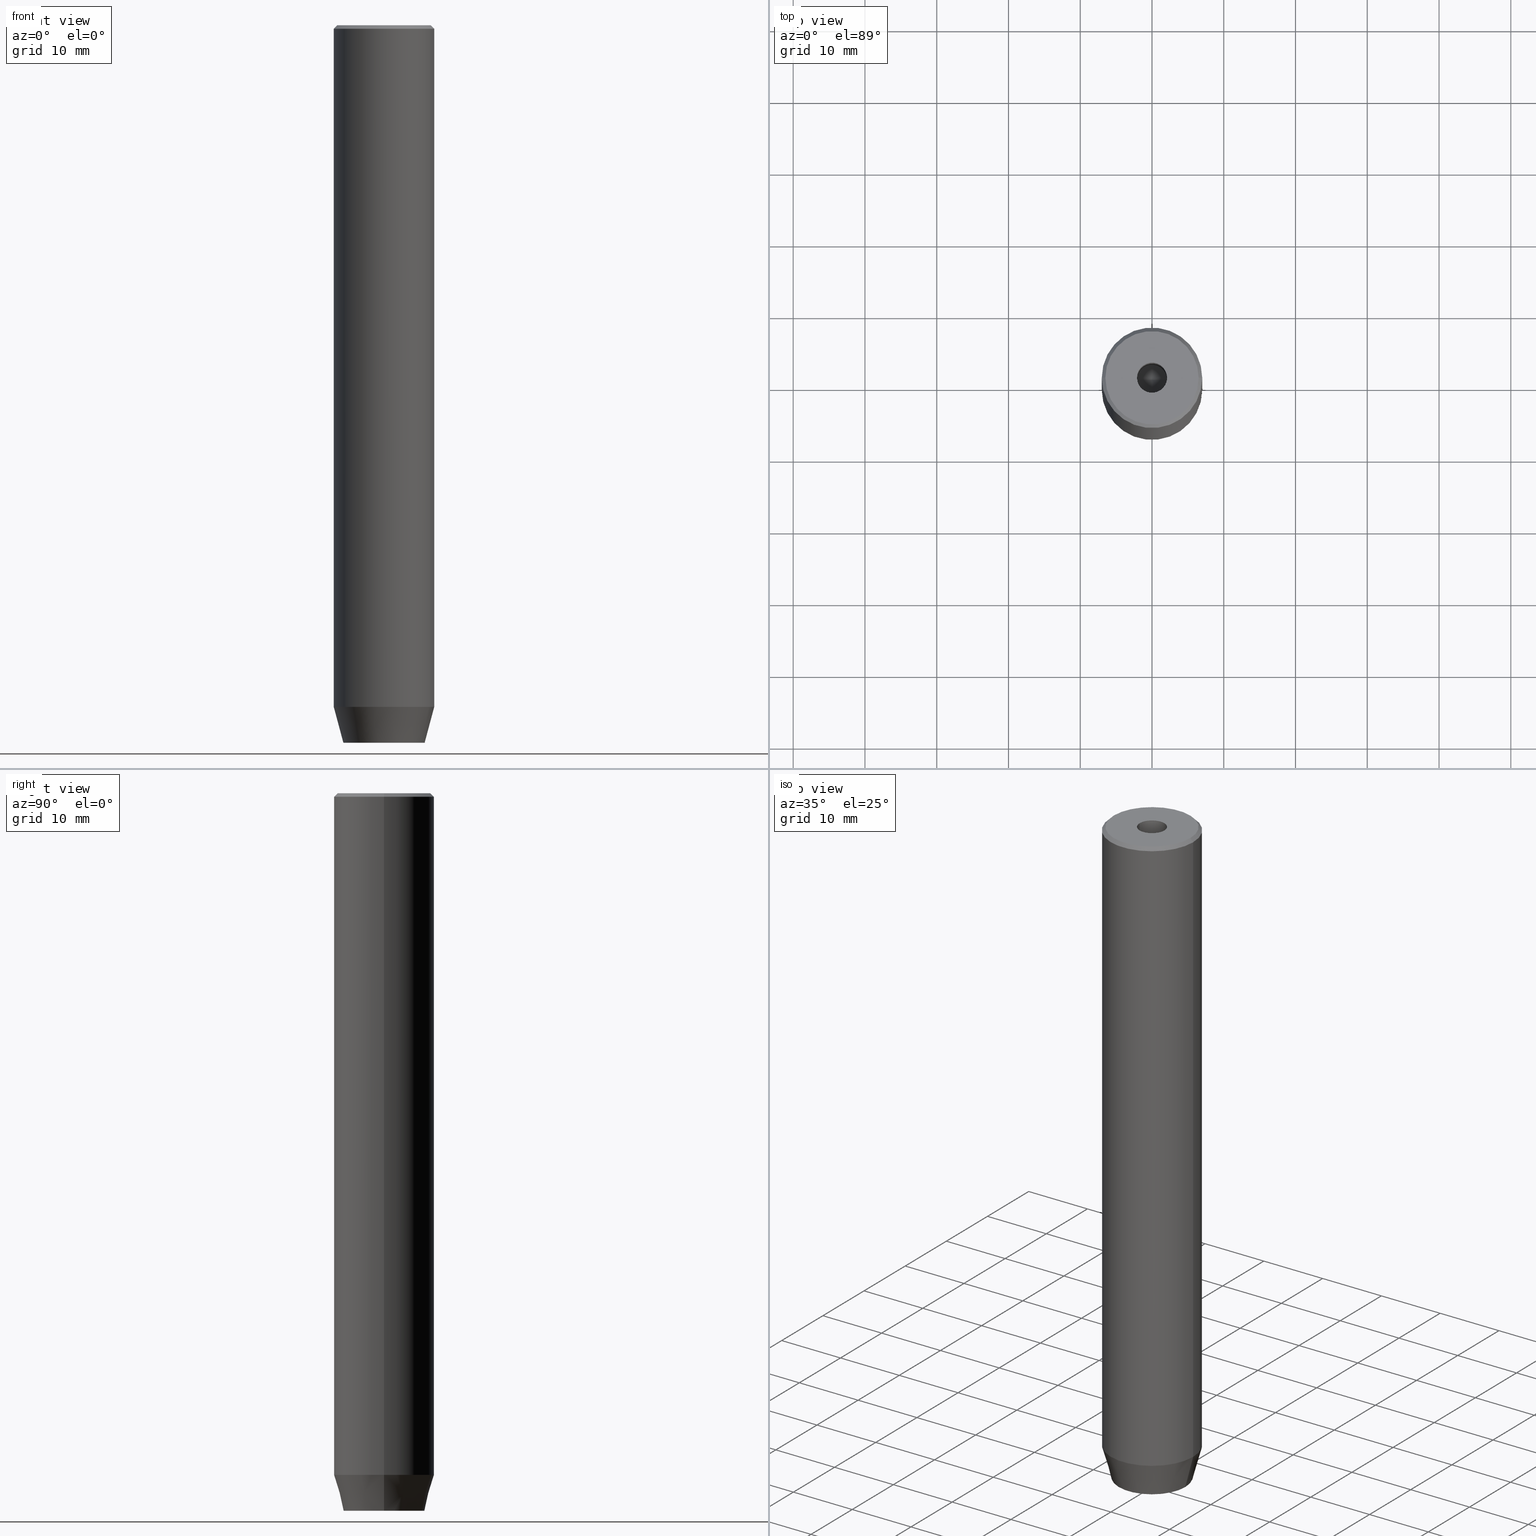
[diagram: canonical four-view strip — front | top / right | iso, engineering-drawing reading convention]
A machine part, canonical four-view strip (front | top / right | iso — engineering-drawing reading convention). The complete STEP part file that produces these views, byte-faithful:
ISO-10303-21;
HEADER;
FILE_DESCRIPTION (( 'STEP AP203' ),
    '1' );
FILE_NAME ('acf7.STEP',
    '2024-01-02T21:53:06',
    ( '' ),
    ( '' ),
    'SwSTEP 2.0',
    'SolidWorks 2019',
    '' );
FILE_SCHEMA (( 'CONFIG_CONTROL_DESIGN' ));
ENDSEC;

DATA;
#1 = CARTESIAN_POINT ( 'NONE',  ( 0.000000000000000000, 0.000000000000000000, 0.000000000000000000 ) ) ;
#2 = EDGE_LOOP ( 'NONE', ( #190, #556, #543, #167 ) ) ;
#3 = CARTESIAN_POINT ( 'NONE',  ( 0.000000000000000000, 0.000000000000000000, -97.20000000000000284 ) ) ;
#4 = ORIENTED_EDGE ( 'NONE', *, *, #584, .F. ) ;
#5 = DIRECTION ( 'NONE',  ( 1.000000000000000000, 0.000000000000000000, 0.000000000000000000 ) ) ;
#6 = ADVANCED_FACE ( 'NONE', ( #398 ), #256, .F. ) ;
#7 = DIRECTION ( 'NONE',  ( 0.8660254037844387076, -0.4999999999999998890, 0.000000000000000000 ) ) ;
#8 = EDGE_LOOP ( 'NONE', ( #50, #354, #414, #4 ) ) ;
#9 = VECTOR ( 'NONE', #147, 1000.000000000000000 ) ;
#10 = ORGANIZATION ( 'NEUR�EN�', 'NEUR�EN�', '' ) ;
#11 = DIRECTION ( 'NONE',  ( 1.000000000000000000, 0.000000000000000000, 0.000000000000000000 ) ) ;
#12 = PERSON_AND_ORGANIZATION ( #495, #10 ) ;
#13 = ORIENTED_EDGE ( 'NONE', *, *, #197, .T. ) ;
#14 = CARTESIAN_POINT ( 'NONE',  ( 0.000000000000000000, 0.000000000000000000, 0.000000000000000000 ) ) ;
#15 = ORIENTED_EDGE ( 'NONE', *, *, #308, .T. ) ;
#16 = EDGE_CURVE ( 'NONE', #184, #33, #24, .T. ) ;
#17 = DIRECTION ( 'NONE',  ( -0.000000000000000000, -0.000000000000000000, 1.000000000000000000 ) ) ;
#18 = VERTEX_POINT ( 'NONE', #341 ) ;
#19 = VECTOR ( 'NONE', #47, 999.9999999999998863 ) ;
#20 = CARTESIAN_POINT ( 'NONE',  ( -1.250000000000000444, 2.165063509461097269, -100.0000000000000000 ) ) ;
#21 = AXIS2_PLACEMENT_3D ( 'NONE', #522, #353, #161 ) ;
#22 = AXIS2_PLACEMENT_3D ( 'NONE', #245, #413, #585 ) ;
#23 = DIRECTION ( 'NONE',  ( -0.8660254037844387076, 0.4999999999999998890, 0.000000000000000000 ) ) ;
#24 = LINE ( 'NONE', #173, #329 ) ;
#25 = DIRECTION ( 'NONE',  ( -0.000000000000000000, -0.000000000000000000, 1.000000000000000000 ) ) ;
#26 = EDGE_CURVE ( 'NONE', #18, #559, #298, .T. ) ;
#27 = ORIENTED_EDGE ( 'NONE', *, *, #186, .T. ) ;
#28 = CARTESIAN_POINT ( 'NONE',  ( -2.500000000000000444, 1.443375672974064772, -97.20000000000000284 ) ) ;
#29 = EDGE_LOOP ( 'NONE', ( #456, #504, #288, #104, #57, #437 ) ) ;
#30 = APPROVAL ( #469, 'NEUR�EN�' ) ;
#31 = DIRECTION ( 'NONE',  ( -0.000000000000000000, -0.000000000000000000, 1.000000000000000000 ) ) ;
#32 = CARTESIAN_POINT ( 'NONE',  ( 2.099999999999998757, 0.000000000000000000, -1.990051048614449116E-16 ) ) ;
#33 = VERTEX_POINT ( 'NONE', #391 ) ;
#34 = CONICAL_SURFACE ( 'NONE', #225, 2.099999999999996980, 1.029744258676652535 ) ;
#35 = APPROVAL_PERSON_ORGANIZATION ( #12, #78, #259 ) ;
#36 = DIRECTION ( 'NONE',  ( -0.000000000000000000, -0.000000000000000000, 1.000000000000000000 ) ) ;
#37 = CARTESIAN_POINT ( 'NONE',  ( 6.499999999999992006, 7.960204194457785616E-16, 0.000000000000000000 ) ) ;
#38 = CARTESIAN_POINT ( 'NONE',  ( -1.084202172485504434E-16, 2.886751345948129543, -97.20000000000000284 ) ) ;
#39 = APPROVAL_ROLE ( '' ) ;
#40 = VECTOR ( 'NONE', #42, 1000.000000000000114 ) ;
#41 = CC_DESIGN_APPROVAL ( #30, ( #317 ) ) ;
#42 = DIRECTION ( 'NONE',  ( -0.8660254037844387076, 0.4999999999999998890, 0.000000000000000000 ) ) ;
#43 = CARTESIAN_POINT ( 'NONE',  ( 0.000000000000000000, 2.886751345948129099, -100.0000000000000000 ) ) ;
#44 = PRODUCT_DEFINITION_SHAPE ( 'NONE', 'NONE',  #372 ) ;
#45 = ORIENTED_EDGE ( 'NONE', *, *, #223, .F. ) ;
#46 = COORDINATED_UNIVERSAL_TIME_OFFSET ( 1, 0, .AHEAD. ) ;
#47 = DIRECTION ( 'NONE',  ( -0.8660254037844387076, -0.5000000000000001110, 0.000000000000000000 ) ) ;
#48 = AXIS2_PLACEMENT_3D ( 'NONE', #438, #442, #301 ) ;
#49 = LOCAL_TIME ( 22, 53, 6.000000000000000000, #477 ) ;
#50 = ORIENTED_EDGE ( 'NONE', *, *, #363, .T. ) ;
#51 = EDGE_CURVE ( 'NONE', #240, #518, #566, .T. ) ;
#52 = CARTESIAN_POINT ( 'NONE',  ( 2.500000000000000000, -1.443375672974064106, -97.20000000000000284 ) ) ;
#53 = ORIENTED_EDGE ( 'NONE', *, *, #577, .F. ) ;
#54 = DIRECTION ( 'NONE',  ( -0.000000000000000000, -0.000000000000000000, 1.000000000000000000 ) ) ;
#55 = COORDINATED_UNIVERSAL_TIME_OFFSET ( 1, 0, .AHEAD. ) ;
#56 = DIRECTION ( 'NONE',  ( -0.4999999999999998890, -0.8660254037844387076, 0.000000000000000000 ) ) ;
#57 = ORIENTED_EDGE ( 'NONE', *, *, #574, .T. ) ;
#58 = CARTESIAN_POINT ( 'NONE',  ( 0.000000000000000000, 0.000000000000000000, -15.00000000000000000 ) ) ;
#59 = DIRECTION ( 'NONE',  ( -0.000000000000000000, -0.000000000000000000, 1.000000000000000000 ) ) ;
#60 = EDGE_LOOP ( 'NONE', ( #320, #106, #439, #521 ) ) ;
#61 = AXIS2_PLACEMENT_3D ( 'NONE', #526, #476, #342 ) ;
#62 = PLANE ( 'NONE',  #457 ) ;
#63 = ADVANCED_FACE ( 'NONE', ( #401 ), #412, .T. ) ;
#64 = ORIENTED_EDGE ( 'NONE', *, *, #450, .F. ) ;
#65 = CARTESIAN_POINT ( 'NONE',  ( 0.000000000000000000, 0.000000000000000000, -95.00000000000000000 ) ) ;
#66 = DIRECTION ( 'NONE',  ( 0.8660254037844385966, -0.5000000000000001110, 0.000000000000000000 ) ) ;
#67 = LINE ( 'NONE', #564, #405 ) ;
#68 = APPLICATION_PROTOCOL_DEFINITION ( 'international standard', 'config_control_design', 1994, #331 ) ;
#69 = VERTEX_POINT ( 'NONE', #175 ) ;
#70 = CIRCLE ( 'NONE', #417, 7.000000000000000000 ) ;
#71 = PLANE ( 'NONE',  #254 ) ;
#72 = AXIS2_PLACEMENT_3D ( 'NONE', #396, #570, #172 ) ;
#73 = CALENDAR_DATE ( 2024, 2, 1 ) ;
#74 = EDGE_CURVE ( 'NONE', #201, #184, #313, .T. ) ;
#75 = APPROVAL_DATE_TIME ( #304, #78 ) ;
#76 = ORIENTED_EDGE ( 'NONE', *, *, #473, .T. ) ;
#77 = CARTESIAN_POINT ( 'NONE',  ( 2.500000000000000000, 1.443375672974064328, -97.20000000000000284 ) ) ;
#78 = APPROVAL ( #255, 'NEUR�EN�' ) ;
#79 = DIRECTION ( 'NONE',  ( 0.2588190451025211836, 0.000000000000000000, 0.9659258262890680902 ) ) ;
#80 = VERTEX_POINT ( 'NONE', #127 ) ;
#81 = CARTESIAN_POINT ( 'NONE',  ( -2.500000000000000444, -1.443375672974064328, -97.20000000000000284 ) ) ;
#82 = APPROVAL_DATE_TIME ( #486, #30 ) ;
#83 = DIRECTION ( 'NONE',  ( 1.000000000000000000, 0.000000000000000000, 0.000000000000000000 ) ) ;
#84 = DIRECTION ( 'NONE',  ( -0.000000000000000000, -0.000000000000000000, 1.000000000000000000 ) ) ;
#85 = EDGE_CURVE ( 'NONE', #559, #571, #444, .T. ) ;
#86 = LINE ( 'NONE', #38, #443 ) ;
#87 = LINE ( 'NONE', #271, #580 ) ;
#88 = CYLINDRICAL_SURFACE ( 'NONE', #178, 7.000000000000000000 ) ;
#89 = AXIS2_PLACEMENT_3D ( 'NONE', #65, #17, #519 ) ;
#90 = LOCAL_TIME ( 22, 53, 6.000000000000000000, #46 ) ;
#91 = LINE ( 'NONE', #411, #283 ) ;
#92 = ADVANCED_FACE ( 'NONE', ( #426 ), #238, .T. ) ;
#93 = FACE_OUTER_BOUND ( 'NONE', #327, .T. ) ;
#94 = DIRECTION ( 'NONE',  ( -0.8660254037844387076, -0.5000000000000001110, 0.000000000000000000 ) ) ;
#95 = EDGE_CURVE ( 'NONE', #518, #155, #70, .T. ) ;
#96 = DIRECTION ( 'NONE',  ( -0.2588190451025211836, 3.169619151431770488E-17, 0.9659258262890680902 ) ) ;
#97 = ORIENTED_EDGE ( 'NONE', *, *, #26, .T. ) ;
#98 = DIRECTION ( 'NONE',  ( 1.000000000000000000, 0.000000000000000000, 0.000000000000000000 ) ) ;
#99 = CONICAL_SURFACE ( 'NONE', #138, 6.499999999999992006, 0.7853981633974517207 ) ;
#100 = CC_DESIGN_PERSON_AND_ORGANIZATION_ASSIGNMENT ( #136, #237, ( #317 ) ) ;
#101 = ORIENTED_EDGE ( 'NONE', *, *, #455, .T. ) ;
#102 = FACE_OUTER_BOUND ( 'NONE', #29, .T. ) ;
#103 = DESIGN_CONTEXT ( 'detailed design', #361, 'design' ) ;
#104 = ORIENTED_EDGE ( 'NONE', *, *, #181, .T. ) ;
#105 = PLANE ( 'NONE',  #489 ) ;
#106 = ORIENTED_EDGE ( 'NONE', *, *, #464, .F. ) ;
#107 = DIRECTION ( 'NONE',  ( 0.8660254037844385966, 0.4999999999999999445, 0.000000000000000000 ) ) ;
#108 = DATE_AND_TIME ( #350, #479 ) ;
#109 = ORIENTED_EDGE ( 'NONE', *, *, #527, .F. ) ;
#110 = CIRCLE ( 'NONE', #61, 5.660254037844382857 ) ;
#111 = AXIS2_PLACEMENT_3D ( 'NONE', #187, #145, #326 ) ;
#112 = CARTESIAN_POINT ( 'NONE',  ( -2.500000000000000444, 0.000000000000000000, -97.20000000000000284 ) ) ;
#113 = CARTESIAN_POINT ( 'NONE',  ( 7.000000000000000000, 0.000000000000000000, -95.00000000000000000 ) ) ;
#114 = CARTESIAN_POINT ( 'NONE',  ( 0.000000000000000000, 0.000000000000000000, 0.000000000000000000 ) ) ;
#115 = CARTESIAN_POINT ( 'NONE',  ( 2.099999999999997868, 0.000000000000000000, 0.000000000000000000 ) ) ;
#116 = CARTESIAN_POINT ( 'NONE',  ( 0.000000000000000000, 0.000000000000000000, 0.000000000000000000 ) ) ;
#117 = ORIENTED_EDGE ( 'NONE', *, *, #347, .T. ) ;
#118 = LINE ( 'NONE', #20, #364 ) ;
#119 = ORIENTED_EDGE ( 'NONE', *, *, #325, .T. ) ;
#120 = EDGE_CURVE ( 'NONE', #510, #420, #143, .T. ) ;
#121 = FACE_OUTER_BOUND ( 'NONE', #484, .T. ) ;
#122 = CIRCLE ( 'NONE', #448, 5.660254037844382857 ) ;
#123 = CARTESIAN_POINT ( 'NONE',  ( -6.499999999999992006, 0.000000000000000000, 0.000000000000000000 ) ) ;
#124 = ORIENTED_EDGE ( 'NONE', *, *, #492, .F. ) ;
#125 = CARTESIAN_POINT ( 'NONE',  ( 0.000000000000000000, 0.000000000000000000, -1.990051048614449116E-16 ) ) ;
#126 = ORIENTED_EDGE ( 'NONE', *, *, #51, .T. ) ;
#127 = CARTESIAN_POINT ( 'NONE',  ( 7.000000000000000000, 0.000000000000000000, -95.00000000000000000 ) ) ;
#128 = DIRECTION ( 'NONE',  ( 0.5000000000000001110, 0.8660254037844385966, -0.000000000000000000 ) ) ;
#129 = ADVANCED_FACE ( 'NONE', ( #286 ), #62, .F. ) ;
#130 = DIRECTION ( 'NONE',  ( -0.000000000000000000, -0.000000000000000000, 1.000000000000000000 ) ) ;
#131 = AXIS2_PLACEMENT_3D ( 'NONE', #112, #387, #433 ) ;
#132 = CARTESIAN_POINT ( 'NONE',  ( -2.099999999999996980, 2.571758278209438013E-16, -15.00000000000000000 ) ) ;
#133 = PLANE ( 'NONE',  #303 ) ;
#134 = EDGE_CURVE ( 'NONE', #465, #194, #554, .T. ) ;
#135 = CARTESIAN_POINT ( 'NONE',  ( 1.250000000000000222, 2.165063509461096825, -100.0000000000000000 ) ) ;
#136 = PERSON_AND_ORGANIZATION ( #495, #10 ) ;
#137 = EDGE_CURVE ( 'NONE', #420, #465, #294, .T. ) ;
#138 = AXIS2_PLACEMENT_3D ( 'NONE', #392, #344, #253 ) ;
#139 = CONICAL_SURFACE ( 'NONE', #111, 7.000000000000000000, 0.2617993877991499074 ) ;
#140 = PRODUCT ( 'acf7', 'acf7', '', ( #345 ) ) ;
#141 = ADVANCED_FACE ( 'NONE', ( #156 ), #105, .F. ) ;
#142 = VERTEX_POINT ( 'NONE', #293 ) ;
#143 = LINE ( 'NONE', #191, #158 ) ;
#144 = CC_DESIGN_PERSON_AND_ORGANIZATION_ASSIGNMENT ( #318, #302, ( #538 ) ) ;
#145 = DIRECTION ( 'NONE',  ( -0.000000000000000000, -0.000000000000000000, 1.000000000000000000 ) ) ;
#146 = ORIENTED_EDGE ( 'NONE', *, *, #16, .F. ) ;
#147 = DIRECTION ( 'NONE',  ( -0.000000000000000000, -0.000000000000000000, -1.000000000000000000 ) ) ;
#148 = CIRCLE ( 'NONE', #192, 6.499999999999992006 ) ;
#149 = DIRECTION ( 'NONE',  ( 1.000000000000000000, 0.000000000000000000, 0.000000000000000000 ) ) ;
#150 = EDGE_LOOP ( 'NONE', ( #475, #109 ) ) ;
#151 = DIRECTION ( 'NONE',  ( -0.000000000000000000, -0.000000000000000000, 1.000000000000000000 ) ) ;
#152 = ORIENTED_EDGE ( 'NONE', *, *, #203, .F. ) ;
#153 = EDGE_CURVE ( 'NONE', #310, #201, #337, .T. ) ;
#154 = CARTESIAN_POINT ( 'NONE',  ( -2.099999999999997868, 2.571758278209438999E-16, 0.000000000000000000 ) ) ;
#155 = VERTEX_POINT ( 'NONE', #185 ) ;
#156 = FACE_OUTER_BOUND ( 'NONE', #60, .T. ) ;
#157 = AXIS2_PLACEMENT_3D ( 'NONE', #114, #31, #216 ) ;
#158 = VECTOR ( 'NONE', #379, 1000.000000000000000 ) ;
#159 = ORIENTED_EDGE ( 'NONE', *, *, #347, .F. ) ;
#160 = AXIS2_PLACEMENT_3D ( 'NONE', #435, #482, #250 ) ;
#161 = DIRECTION ( 'NONE',  ( 1.000000000000000000, 0.000000000000000000, 0.000000000000000000 ) ) ;
#162 = ADVANCED_FACE ( 'NONE', ( #463 ), #34, .F. ) ;
#163 = CARTESIAN_POINT ( 'NONE',  ( -1.249999999999999556, -2.165063509461096825, -97.20000000000000284 ) ) ;
#164 = EDGE_LOOP ( 'NONE', ( #423, #126, #429, #206 ) ) ;
#165 = LINE ( 'NONE', #115, #496 ) ;
#166 =( NAMED_UNIT ( * ) SI_UNIT ( $, .STERADIAN. ) SOLID_ANGLE_UNIT ( ) );
#167 = ORIENTED_EDGE ( 'NONE', *, *, #407, .F. ) ;
#168 = DIRECTION ( 'NONE',  ( -0.000000000000000000, -0.000000000000000000, -1.000000000000000000 ) ) ;
#169 = ORIENTED_EDGE ( 'NONE', *, *, #137, .F. ) ;
#170 = PERSON_AND_ORGANIZATION_ROLE ( 'creator' ) ;
#171 = ORIENTED_EDGE ( 'NONE', *, *, #186, .F. ) ;
#172 = DIRECTION ( 'NONE',  ( -1.000000000000000000, 0.000000000000000000, 0.000000000000000000 ) ) ;
#173 = CARTESIAN_POINT ( 'NONE',  ( 1.250000000000000222, 2.165063509461096825, -97.20000000000000284 ) ) ;
#174 = LINE ( 'NONE', #77, #204 ) ;
#175 = CARTESIAN_POINT ( 'NONE',  ( 2.500000000000000000, -1.443375672974064106, -97.20000000000000284 ) ) ;
#176 = DIRECTION ( 'NONE',  ( -0.000000000000000000, -0.000000000000000000, 1.000000000000000000 ) ) ;
#177 = DIRECTION ( 'NONE',  ( 1.000000000000000000, 0.000000000000000000, 0.000000000000000000 ) ) ;
#178 = AXIS2_PLACEMENT_3D ( 'NONE', #578, #130, #177 ) ;
#179 = ORIENTED_EDGE ( 'NONE', *, *, #314, .T. ) ;
#180 = CARTESIAN_POINT ( 'NONE',  ( -2.099999999999996980, 2.571758278209438013E-16, -15.00000000000000000 ) ) ;
#181 = EDGE_CURVE ( 'NONE', #69, #305, #557, .T. ) ;
#182 = CARTESIAN_POINT ( 'NONE',  ( 0.000000000000000000, 0.000000000000000000, -95.00000000000000000 ) ) ;
#183 = VECTOR ( 'NONE', #430, 1000.000000000000000 ) ;
#184 = VERTEX_POINT ( 'NONE', #587 ) ;
#185 = CARTESIAN_POINT ( 'NONE',  ( 7.000000000000000000, 0.000000000000000000, -0.5000000000000048850 ) ) ;
#186 = EDGE_CURVE ( 'NONE', #310, #425, #328, .T. ) ;
#187 = CARTESIAN_POINT ( 'NONE',  ( 0.000000000000000000, 0.000000000000000000, -95.00000000000000000 ) ) ;
#188 = EDGE_LOOP ( 'NONE', ( #97, #152, #64, #260 ) ) ;
#189 = DIRECTION ( 'NONE',  ( 0.000000000000000000, 0.000000000000000000, -1.000000000000000000 ) ) ;
#190 = ORIENTED_EDGE ( 'NONE', *, *, #539, .F. ) ;
#191 = CARTESIAN_POINT ( 'NONE',  ( 2.099999999999996980, 0.000000000000000000, -15.00000000000000000 ) ) ;
#192 = AXIS2_PLACEMENT_3D ( 'NONE', #227, #274, #583 ) ;
#193 = ADVANCED_FACE ( 'NONE', ( #454, #230 ), #418, .T. ) ;
#194 = VERTEX_POINT ( 'NONE', #544 ) ;
#195 = DIRECTION ( 'NONE',  ( 1.000000000000000000, 0.000000000000000000, 0.000000000000000000 ) ) ;
#196 = DIRECTION ( 'NONE',  ( 1.000000000000000000, 0.000000000000000000, 0.000000000000000000 ) ) ;
#197 = EDGE_CURVE ( 'NONE', #386, #297, #232, .T. ) ;
#198 = ORIENTED_EDGE ( 'NONE', *, *, #498, .T. ) ;
#199 = DIRECTION ( 'NONE',  ( 1.000000000000000000, 0.000000000000000000, 0.000000000000000000 ) ) ;
#200 = MANIFOLD_SOLID_BREP ( 'Vrt�k z�vitn�ku pro M5 z�vit1', #512 ) ;
#201 = VERTEX_POINT ( 'NONE', #281 ) ;
#202 = CARTESIAN_POINT ( 'NONE',  ( 0.000000000000000000, -2.886751345948128211, -97.20000000000000284 ) ) ;
#203 = EDGE_CURVE ( 'NONE', #69, #559, #458, .T. ) ;
#204 = VECTOR ( 'NONE', #168, 1000.000000000000000 ) ;
#205 = LINE ( 'NONE', #113, #445 ) ;
#206 = ORIENTED_EDGE ( 'NONE', *, *, #308, .F. ) ;
#207 = APPROVAL_PERSON_ORGANIZATION ( #296, #30, #558 ) ;
#208 = CARTESIAN_POINT ( 'NONE',  ( -5.660254037844382857, 7.752169791919238770E-16, -100.0000000000000000 ) ) ;
#209 = CC_DESIGN_DATE_AND_TIME_ASSIGNMENT ( #108, #524, ( #372 ) ) ;
#210 = APPLICATION_PROTOCOL_DEFINITION ( 'international standard', 'config_control_design', 1994, #361 ) ;
#211 = DIRECTION ( 'NONE',  ( 0.000000000000000000, -1.000000000000000000, 0.000000000000000000 ) ) ;
#212 = DIRECTION ( 'NONE',  ( 1.000000000000000000, 0.000000000000000000, 0.000000000000000000 ) ) ;
#213 = EDGE_LOOP ( 'NONE', ( #124, #516, #541, #53 ) ) ;
#214 = CARTESIAN_POINT ( 'NONE',  ( 6.499999999999992006, 8.266365894244629403E-16, 0.000000000000000000 ) ) ;
#215 = ORIENTED_EDGE ( 'NONE', *, *, #197, .F. ) ;
#216 = DIRECTION ( 'NONE',  ( 1.000000000000000000, 0.000000000000000000, 0.000000000000000000 ) ) ;
#217 = ADVANCED_FACE ( 'NONE', ( #102 ), #422, .T. ) ;
#218 = FACE_OUTER_BOUND ( 'NONE', #373, .T. ) ;
#219 = VECTOR ( 'NONE', #503, 1000.000000000000000 ) ;
#220 = CC_DESIGN_APPROVAL ( #78, ( #372 ) ) ;
#221 = ORIENTED_EDGE ( 'NONE', *, *, #473, .F. ) ;
#222 = CARTESIAN_POINT ( 'NONE',  ( -1.250000000000000444, 2.165063509461097269, -97.20000000000000284 ) ) ;
#223 = EDGE_CURVE ( 'NONE', #201, #501, #471, .T. ) ;
#224 = CARTESIAN_POINT ( 'NONE',  ( 2.099999999999996980, 0.000000000000000000, -15.00000000000000000 ) ) ;
#225 = AXIS2_PLACEMENT_3D ( 'NONE', #58, #247, #199 ) ;
#226 = CARTESIAN_POINT ( 'NONE',  ( -2.500000000000000444, 1.443375672974064772, -100.0000000000000000 ) ) ;
#227 = CARTESIAN_POINT ( 'NONE',  ( 0.000000000000000000, 0.000000000000000000, 0.000000000000000000 ) ) ;
#228 = EDGE_CURVE ( 'NONE', #33, #18, #174, .T. ) ;
#229 = VERTEX_POINT ( 'NONE', #208 ) ;
#230 = FACE_OUTER_BOUND ( 'NONE', #150, .T. ) ;
#231 = VECTOR ( 'NONE', #211, 1000.000000000000000 ) ;
#232 = CIRCLE ( 'NONE', #243, 6.499999999999992006 ) ;
#233 = VECTOR ( 'NONE', #515, 1000.000000000000114 ) ;
#234 = ORIENTED_EDGE ( 'NONE', *, *, #26, .F. ) ;
#235 = DIRECTION ( 'NONE',  ( -0.000000000000000000, -0.000000000000000000, -1.000000000000000000 ) ) ;
#236 = EDGE_LOOP ( 'NONE', ( #470, #563, #343 ) ) ;
#237 = PERSON_AND_ORGANIZATION_ROLE ( 'design_supplier' ) ;
#238 = CYLINDRICAL_SURFACE ( 'NONE', #547, 7.000000000000000000 ) ;
#239 = ADVANCED_FACE ( 'NONE', ( #261 ), #385, .F. ) ;
#240 = VERTEX_POINT ( 'NONE', #440 ) ;
#241 = DIRECTION ( 'NONE',  ( 1.000000000000000000, 0.000000000000000000, -0.000000000000000000 ) ) ;
#242 = APPROVAL ( #277, 'NEUR�EN�' ) ;
#243 = AXIS2_PLACEMENT_3D ( 'NONE', #371, #54, #98 ) ;
#244 = CC_DESIGN_SECURITY_CLASSIFICATION ( #538, ( #317 ) ) ;
#245 = CARTESIAN_POINT ( 'NONE',  ( -1.250000000000000444, 2.165063509461097269, -97.20000000000000284 ) ) ;
#246 = EDGE_LOOP ( 'NONE', ( #586, #395, #380, #400 ) ) ;
#247 = DIRECTION ( 'NONE',  ( -0.000000000000000000, -0.000000000000000000, 1.000000000000000000 ) ) ;
#248 = CARTESIAN_POINT ( 'NONE',  ( 0.000000000000000000, -2.886751345948128211, -100.0000000000000000 ) ) ;
#249 = ORIENTED_EDGE ( 'NONE', *, *, #498, .F. ) ;
#250 = DIRECTION ( 'NONE',  ( 1.000000000000000000, 0.000000000000000000, 0.000000000000000000 ) ) ;
#251 = DIRECTION ( 'NONE',  ( 0.000000000000000000, 0.000000000000000000, 1.000000000000000000 ) ) ;
#252 = CARTESIAN_POINT ( 'NONE',  ( 2.500000000000000000, 0.000000000000000000, -100.0000000000000000 ) ) ;
#253 = DIRECTION ( 'NONE',  ( -1.000000000000000000, 0.000000000000000000, 0.000000000000000000 ) ) ;
#254 = AXIS2_PLACEMENT_3D ( 'NONE', #399, #265, #517 ) ;
#255 = APPROVAL_STATUS ( 'not_yet_approved' ) ;
#256 = CYLINDRICAL_SURFACE ( 'NONE', #157, 2.099999999999997868 ) ;
#257 = CARTESIAN_POINT ( 'NONE',  ( 0.000000000000000000, 0.000000000000000000, -15.00000000000000000 ) ) ;
#258 = DATE_AND_TIME ( #73, #49 ) ;
#259 = APPROVAL_ROLE ( '' ) ;
#260 = ORIENTED_EDGE ( 'NONE', *, *, #228, .T. ) ;
#261 = FACE_OUTER_BOUND ( 'NONE', #506, .T. ) ;
#262 = EDGE_CURVE ( 'NONE', #501, #525, #118, .T. ) ;
#263 = PERSON_AND_ORGANIZATION ( #495, #10 ) ;
#264 = ORIENTED_EDGE ( 'NONE', *, *, #533, .F. ) ;
#265 = DIRECTION ( 'NONE',  ( 0.000000000000000000, -0.000000000000000000, 1.000000000000000000 ) ) ;
#266 = DIRECTION ( 'NONE',  ( 0.8660254037844385966, 0.5000000000000001110, 0.000000000000000000 ) ) ;
#267 = VECTOR ( 'NONE', #36, 1000.000000000000000 ) ;
#268 = DIRECTION ( 'NONE',  ( 1.000000000000000000, 0.000000000000000000, 0.000000000000000000 ) ) ;
#269 = AXIS2_PLACEMENT_3D ( 'NONE', #182, #176, #529 ) ;
#270 = ADVANCED_FACE ( 'NONE', ( #121 ), #511, .F. ) ;
#271 = CARTESIAN_POINT ( 'NONE',  ( -2.500000000000000444, 0.000000000000000000, -100.0000000000000000 ) ) ;
#272 = LINE ( 'NONE', #449, #40 ) ;
#273 = VECTOR ( 'NONE', #96, 1000.000000000000114 ) ;
#274 = DIRECTION ( 'NONE',  ( -0.000000000000000000, -0.000000000000000000, 1.000000000000000000 ) ) ;
#275 = EDGE_CURVE ( 'NONE', #80, #240, #436, .T. ) ;
#276 = CARTESIAN_POINT ( 'NONE',  ( 2.500000000000000000, -1.443375672974064106, -100.0000000000000000 ) ) ;
#277 = APPROVAL_STATUS ( 'not_yet_approved' ) ;
#278 = CARTESIAN_POINT ( 'NONE',  ( -2.500000000000000444, -1.443375672974064328, -97.20000000000000284 ) ) ;
#279 = ORIENTED_EDGE ( 'NONE', *, *, #393, .T. ) ;
#280 = SHAPE_DEFINITION_REPRESENTATION ( #44, #447 ) ;
#281 = CARTESIAN_POINT ( 'NONE',  ( -2.500000000000000444, 1.443375672974064772, -97.20000000000000284 ) ) ;
#282 = AXIS2_PLACEMENT_3D ( 'NONE', #487, #356, #83 ) ;
#283 = VECTOR ( 'NONE', #406, 1000.000000000000000 ) ;
#284 = FACE_OUTER_BOUND ( 'NONE', #481, .T. ) ;
#285 = ORIENTED_EDGE ( 'NONE', *, *, #314, .F. ) ;
#286 = FACE_OUTER_BOUND ( 'NONE', #188, .T. ) ;
#287 = CYLINDRICAL_SURFACE ( 'NONE', #295, 2.099999999999997868 ) ;
#288 = ORIENTED_EDGE ( 'NONE', *, *, #450, .T. ) ;
#289 = CARTESIAN_POINT ( 'NONE',  ( 1.249999999999999778, -2.165063509461096380, -97.20000000000000284 ) ) ;
#290 = CC_DESIGN_PERSON_AND_ORGANIZATION_ASSIGNMENT ( #394, #170, ( #372 ) ) ;
#291 = CARTESIAN_POINT ( 'NONE',  ( -7.000000000000000000, 8.572527594031473190E-16, -95.00000000000000000 ) ) ;
#292 = EDGE_LOOP ( 'NONE', ( #472, #221, #249, #336, #234, #459 ) ) ;
#293 = CARTESIAN_POINT ( 'NONE',  ( 5.660254037844382857, 0.000000000000000000, -100.0000000000000000 ) ) ;
#294 = CIRCLE ( 'NONE', #537, 2.099999999999996980 ) ;
#295 = AXIS2_PLACEMENT_3D ( 'NONE', #1, #59, #149 ) ;
#296 = PERSON_AND_ORGANIZATION ( #495, #10 ) ;
#297 = VERTEX_POINT ( 'NONE', #214 ) ;
#298 = LINE ( 'NONE', #252, #231 ) ;
#299 = CARTESIAN_POINT ( 'NONE',  ( -6.499999999999992006, 0.000000000000000000, 0.000000000000000000 ) ) ;
#300 = ORIENTED_EDGE ( 'NONE', *, *, #492, .T. ) ;
#301 = DIRECTION ( 'NONE',  ( 1.000000000000000000, 0.000000000000000000, 0.000000000000000000 ) ) ;
#302 = PERSON_AND_ORGANIZATION_ROLE ( 'classification_officer' ) ;
#303 = AXIS2_PLACEMENT_3D ( 'NONE', #321, #128, #357 ) ;
#304 = DATE_AND_TIME ( #520, #306 ) ;
#305 = VERTEX_POINT ( 'NONE', #202 ) ;
#306 = LOCAL_TIME ( 22, 53, 6.000000000000000000, #390 ) ;
#307 = DIRECTION ( 'NONE',  ( -0.000000000000000000, -0.000000000000000000, 1.000000000000000000 ) ) ;
#308 = EDGE_CURVE ( 'NONE', #80, #155, #67, .T. ) ;
#309 = LINE ( 'NONE', #163, #376 ) ;
#310 = VERTEX_POINT ( 'NONE', #81 ) ;
#311 = DIRECTION ( 'NONE',  ( -0.000000000000000000, -0.000000000000000000, 1.000000000000000000 ) ) ;
#312 = SECURITY_CLASSIFICATION_LEVEL ( 'unclassified' ) ;
#313 = LINE ( 'NONE', #222, #531 ) ;
#314 = EDGE_CURVE ( 'NONE', #155, #518, #427, .T. ) ;
#315 = CIRCLE ( 'NONE', #532, 2.099999999999998757 ) ;
#316 = DIRECTION ( 'NONE',  ( 0.7071067811865500152, 8.659560562354962440E-17, -0.7071067811865451302 ) ) ;
#317 = PRODUCT_DEFINITION_FORMATION_WITH_SPECIFIED_SOURCE ( 'LIBOVOLN�', '', #140, .NOT_KNOWN. ) ;
#318 = PERSON_AND_ORGANIZATION ( #495, #10 ) ;
#319 = CARTESIAN_POINT ( 'NONE',  ( -2.500000000000000444, -1.443375672974064328, -100.0000000000000000 ) ) ;
#320 = ORIENTED_EDGE ( 'NONE', *, *, #85, .T. ) ;
#321 = CARTESIAN_POINT ( 'NONE',  ( 1.250000000000000222, 2.165063509461096825, -97.20000000000000284 ) ) ;
#322 = ADVANCED_FACE ( 'NONE', ( #384 ), #397, .T. ) ;
#323 = ORIENTED_EDGE ( 'NONE', *, *, #368, .T. ) ;
#324 = DIRECTION ( 'NONE',  ( 0.5000000000000000000, -0.8660254037844387076, 0.000000000000000000 ) ) ;
#325 = EDGE_CURVE ( 'NONE', #420, #370, #165, .T. ) ;
#326 = DIRECTION ( 'NONE',  ( 1.000000000000000000, 0.000000000000000000, 0.000000000000000000 ) ) ;
#327 = EDGE_LOOP ( 'NONE', ( #198, #171, #499, #360 ) ) ;
#328 = LINE ( 'NONE', #278, #9 ) ;
#329 = VECTOR ( 'NONE', #66, 1000.000000000000000 ) ;
#330 = AXIS2_PLACEMENT_3D ( 'NONE', #3, #189, #460 ) ;
#331 = APPLICATION_CONTEXT ( 'configuration controlled 3d designs of mechanical parts and assemblies' ) ;
#332 = CC_DESIGN_APPROVAL ( #242, ( #538 ) ) ;
#333 = ORIENTED_EDGE ( 'NONE', *, *, #51, .F. ) ;
#334 = CARTESIAN_POINT ( 'NONE',  ( 2.500000000000000000, 0.000000000000000000, -97.20000000000000284 ) ) ;
#335 = CALENDAR_DATE ( 2024, 2, 1 ) ;
#336 = ORIENTED_EDGE ( 'NONE', *, *, #85, .F. ) ;
#337 = LINE ( 'NONE', #466, #183 ) ;
#338 = ORIENTED_EDGE ( 'NONE', *, *, #325, .F. ) ;
#339 = CARTESIAN_POINT ( 'NONE',  ( 1.249999999999999778, -2.165063509461096380, -97.20000000000000284 ) ) ;
#340 = VECTOR ( 'NONE', #235, 1000.000000000000000 ) ;
#341 = CARTESIAN_POINT ( 'NONE',  ( 2.500000000000000000, 1.443375672974064328, -100.0000000000000000 ) ) ;
#342 = DIRECTION ( 'NONE',  ( 1.000000000000000000, 0.000000000000000000, 0.000000000000000000 ) ) ;
#343 = ORIENTED_EDGE ( 'NONE', *, *, #137, .T. ) ;
#344 = DIRECTION ( 'NONE',  ( 0.000000000000000000, 0.000000000000000000, -1.000000000000000000 ) ) ;
#345 = MECHANICAL_CONTEXT ( 'NONE', #331, 'mechanical' ) ;
#346 = EDGE_LOOP ( 'NONE', ( #333, #383, #15, #179 ) ) ;
#347 = EDGE_CURVE ( 'NONE', #194, #370, #572, .T. ) ;
#348 = DIRECTION ( 'NONE',  ( 1.000000000000000000, 0.000000000000000000, 0.000000000000000000 ) ) ;
#349 = VECTOR ( 'NONE', #567, 1000.000000000000000 ) ;
#350 = CALENDAR_DATE ( 2024, 2, 1 ) ;
#351 = ORIENTED_EDGE ( 'NONE', *, *, #228, .F. ) ;
#352 = CC_DESIGN_PERSON_AND_ORGANIZATION_ASSIGNMENT ( #388, #565, ( #317 ) ) ;
#353 = DIRECTION ( 'NONE',  ( -0.000000000000000000, -0.000000000000000000, 1.000000000000000000 ) ) ;
#354 = ORIENTED_EDGE ( 'NONE', *, *, #539, .T. ) ;
#355 = DIRECTION ( 'NONE',  ( -0.000000000000000000, -0.000000000000000000, -1.000000000000000000 ) ) ;
#356 = DIRECTION ( 'NONE',  ( -0.000000000000000000, -0.000000000000000000, 1.000000000000000000 ) ) ;
#357 = DIRECTION ( 'NONE',  ( -0.8660254037844385966, 0.5000000000000001110, 0.000000000000000000 ) ) ;
#358 = CC_DESIGN_PERSON_AND_ORGANIZATION_ASSIGNMENT ( #263, #509, ( #140 ) ) ;
#359 = VECTOR ( 'NONE', #581, 1000.000000000000000 ) ;
#360 = ORIENTED_EDGE ( 'NONE', *, *, #464, .T. ) ;
#361 = APPLICATION_CONTEXT ( 'configuration controlled 3d designs of mechanical parts and assemblies' ) ;
#362 = DIRECTION ( 'NONE',  ( -0.000000000000000000, -0.000000000000000000, -1.000000000000000000 ) ) ;
#363 = EDGE_CURVE ( 'NONE', #142, #229, #110, .T. ) ;
#364 = VECTOR ( 'NONE', #575, 1000.000000000000000 ) ;
#365 = APPROVAL_PERSON_ORGANIZATION ( #415, #242, #39 ) ;
#366 = ORIENTED_EDGE ( 'NONE', *, *, #403, .T. ) ;
#367 = CARTESIAN_POINT ( 'NONE',  ( 0.000000000000000000, 5.660254037844382857, -100.0000000000000000 ) ) ;
#368 = EDGE_CURVE ( 'NONE', #370, #194, #315, .T. ) ;
#369 = LINE ( 'NONE', #291, #273 ) ;
#370 = VERTEX_POINT ( 'NONE', #32 ) ;
#371 = CARTESIAN_POINT ( 'NONE',  ( 0.000000000000000000, 0.000000000000000000, 0.000000000000000000 ) ) ;
#372 = PRODUCT_DEFINITION ( 'NEZN�M�', '', #317, #103 ) ;
#373 = EDGE_LOOP ( 'NONE', ( #13, #300 ) ) ;
#374 = CARTESIAN_POINT ( 'NONE',  ( 1.249999999999999778, -2.165063509461096380, -100.0000000000000000 ) ) ;
#375 = VECTOR ( 'NONE', #451, 1000.000000000000000 ) ;
#376 = VECTOR ( 'NONE', #23, 1000.000000000000114 ) ;
#377 = PLANE ( 'NONE',  #22 ) ;
#378 = EDGE_LOOP ( 'NONE', ( #548, #159 ) ) ;
#379 = DIRECTION ( 'NONE',  ( 0.8571673007021113344, 0.000000000000000000, 0.5150380749100558209 ) ) ;
#380 = ORIENTED_EDGE ( 'NONE', *, *, #74, .F. ) ;
#381 = ADVANCED_FACE ( 'NONE', ( #485, #218 ), #71, .T. ) ;
#382 = CARTESIAN_POINT ( 'NONE',  ( 0.000000000000000000, 0.000000000000000000, -0.5000000000000048850 ) ) ;
#383 = ORIENTED_EDGE ( 'NONE', *, *, #407, .T. ) ;
#384 = FACE_OUTER_BOUND ( 'NONE', #213, .T. ) ;
#385 = CONICAL_SURFACE ( 'NONE', #160, 2.099999999999996980, 1.029744258676652535 ) ;
#386 = VERTEX_POINT ( 'NONE', #299 ) ;
#387 = DIRECTION ( 'NONE',  ( -1.000000000000000000, 0.000000000000000000, 0.000000000000000000 ) ) ;
#388 = PERSON_AND_ORGANIZATION ( #495, #10 ) ;
#389 = ADVANCED_FACE ( 'NONE', ( #474 ), #99, .T. ) ;
#390 = COORDINATED_UNIVERSAL_TIME_OFFSET ( 1, 0, .AHEAD. ) ;
#391 = CARTESIAN_POINT ( 'NONE',  ( 2.500000000000000000, 1.443375672974064328, -97.20000000000000284 ) ) ;
#392 = CARTESIAN_POINT ( 'NONE',  ( 0.000000000000000000, 0.000000000000000000, 0.000000000000000000 ) ) ;
#393 = EDGE_CURVE ( 'NONE', #465, #420, #490, .T. ) ;
#394 = PERSON_AND_ORGANIZATION ( #495, #10 ) ;
#395 = ORIENTED_EDGE ( 'NONE', *, *, #403, .F. ) ;
#396 = CARTESIAN_POINT ( 'NONE',  ( 0.000000000000000000, 0.000000000000000000, 0.000000000000000000 ) ) ;
#397 = CONICAL_SURFACE ( 'NONE', #72, 6.499999999999992006, 0.7853981633974517207 ) ;
#398 = FACE_OUTER_BOUND ( 'NONE', #434, .T. ) ;
#399 = CARTESIAN_POINT ( 'NONE',  ( 0.000000000000000000, 0.000000000000000000, 0.000000000000000000 ) ) ;
#400 = ORIENTED_EDGE ( 'NONE', *, *, #223, .T. ) ;
#401 = FACE_OUTER_BOUND ( 'NONE', #8, .T. ) ;
#402 = CARTESIAN_POINT ( 'NONE',  ( 0.000000000000000000, -2.886751345948128211, -97.20000000000000284 ) ) ;
#403 = EDGE_CURVE ( 'NONE', #184, #525, #86, .T. ) ;
#404 = FACE_OUTER_BOUND ( 'NONE', #346, .T. ) ;
#405 = VECTOR ( 'NONE', #307, 1000.000000000000000 ) ;
#406 = DIRECTION ( 'NONE',  ( 0.000000000000000000, -1.000000000000000000, 0.000000000000000000 ) ) ;
#407 = EDGE_CURVE ( 'NONE', #240, #80, #513, .T. ) ;
#408 = CARTESIAN_POINT ( 'NONE',  ( -3.982994051648894933E-15, 0.000000000000000000, -16.26180729995787644 ) ) ;
#409 = APPROVAL_DATE_TIME ( #493, #242 ) ;
#410 = PRODUCT_RELATED_PRODUCT_CATEGORY ( 'detail', '', ( #140 ) ) ;
#411 = CARTESIAN_POINT ( 'NONE',  ( 2.500000000000000000, 0.000000000000000000, -97.20000000000000284 ) ) ;
#412 = CONICAL_SURFACE ( 'NONE', #282, 7.000000000000000000, 0.2617993877991499074 ) ;
#413 = DIRECTION ( 'NONE',  ( -0.5000000000000001110, 0.8660254037844385966, 0.000000000000000000 ) ) ;
#414 = ORIENTED_EDGE ( 'NONE', *, *, #275, .F. ) ;
#415 = PERSON_AND_ORGANIZATION ( #495, #10 ) ;
#416 = ADVANCED_FACE ( 'NONE', ( #404 ), #88, .T. ) ;
#417 = AXIS2_PLACEMENT_3D ( 'NONE', #382, #424, #11 ) ;
#418 = PLANE ( 'NONE',  #549 ) ;
#419 = PLANE ( 'NONE',  #428 ) ;
#420 = VERTEX_POINT ( 'NONE', #224 ) ;
#421 = CALENDAR_DATE ( 2024, 2, 1 ) ;
#422 = PLANE ( 'NONE',  #330 ) ;
#423 = ORIENTED_EDGE ( 'NONE', *, *, #275, .T. ) ;
#424 = DIRECTION ( 'NONE',  ( 0.000000000000000000, 0.000000000000000000, -1.000000000000000000 ) ) ;
#425 = VERTEX_POINT ( 'NONE', #319 ) ;
#426 = FACE_OUTER_BOUND ( 'NONE', #164, .T. ) ;
#427 = CIRCLE ( 'NONE', #48, 7.000000000000000000 ) ;
#428 = AXIS2_PLACEMENT_3D ( 'NONE', #461, #56, #7 ) ;
#429 = ORIENTED_EDGE ( 'NONE', *, *, #95, .T. ) ;
#430 = DIRECTION ( 'NONE',  ( 0.000000000000000000, 1.000000000000000000, 0.000000000000000000 ) ) ;
#431 = LINE ( 'NONE', #123, #233 ) ;
#432 = ORIENTED_EDGE ( 'NONE', *, *, #393, .F. ) ;
#433 = DIRECTION ( 'NONE',  ( 0.000000000000000000, 0.000000000000000000, 1.000000000000000000 ) ) ;
#434 = EDGE_LOOP ( 'NONE', ( #432, #579, #117, #338 ) ) ;
#435 = CARTESIAN_POINT ( 'NONE',  ( 0.000000000000000000, 0.000000000000000000, -15.00000000000000000 ) ) ;
#436 = CIRCLE ( 'NONE', #89, 7.000000000000000000 ) ;
#437 = ORIENTED_EDGE ( 'NONE', *, *, #153, .T. ) ;
#438 = CARTESIAN_POINT ( 'NONE',  ( 0.000000000000000000, 0.000000000000000000, -0.5000000000000048850 ) ) ;
#439 = ORIENTED_EDGE ( 'NONE', *, *, #181, .F. ) ;
#440 = CARTESIAN_POINT ( 'NONE',  ( -7.000000000000000000, 8.572527594031473190E-16, -95.00000000000000000 ) ) ;
#441 = ORIENTED_EDGE ( 'NONE', *, *, #577, .T. ) ;
#442 = DIRECTION ( 'NONE',  ( 0.000000000000000000, 0.000000000000000000, -1.000000000000000000 ) ) ;
#443 = VECTOR ( 'NONE', #362, 1000.000000000000000 ) ;
#444 = LINE ( 'NONE', #374, #19 ) ;
#445 = VECTOR ( 'NONE', #79, 1000.000000000000114 ) ;
#446 = LINE ( 'NONE', #37, #523 ) ;
#447 = ADVANCED_BREP_SHAPE_REPRESENTATION ( 'acf7', ( #200, #550 ), #468 ) ;
#448 = AXIS2_PLACEMENT_3D ( 'NONE', #488, #84, #268 ) ;
#449 = CARTESIAN_POINT ( 'NONE',  ( -1.249999999999999556, -2.165063509461096825, -100.0000000000000000 ) ) ;
#450 = EDGE_CURVE ( 'NONE', #33, #69, #91, .T. ) ;
#451 = DIRECTION ( 'NONE',  ( 0.8660254037844385966, -0.5000000000000001110, 0.000000000000000000 ) ) ;
#452 = FACE_OUTER_BOUND ( 'NONE', #246, .T. ) ;
#453 = ORIENTED_EDGE ( 'NONE', *, *, #134, .F. ) ;
#454 = FACE_BOUND ( 'NONE', #292, .T. ) ;
#455 = EDGE_CURVE ( 'NONE', #510, #465, #536, .T. ) ;
#456 = ORIENTED_EDGE ( 'NONE', *, *, #74, .T. ) ;
#457 = AXIS2_PLACEMENT_3D ( 'NONE', #334, #241, #551 ) ;
#458 = LINE ( 'NONE', #52, #340 ) ;
#459 = ORIENTED_EDGE ( 'NONE', *, *, #514, .F. ) ;
#460 = DIRECTION ( 'NONE',  ( -1.000000000000000000, 0.000000000000000000, -0.000000000000000000 ) ) ;
#461 = CARTESIAN_POINT ( 'NONE',  ( -1.249999999999999556, -2.165063509461096825, -97.20000000000000284 ) ) ;
#462 = ORIENTED_EDGE ( 'NONE', *, *, #514, .T. ) ;
#463 = FACE_OUTER_BOUND ( 'NONE', #236, .T. ) ;
#464 = EDGE_CURVE ( 'NONE', #305, #571, #491, .T. ) ;
#465 = VERTEX_POINT ( 'NONE', #132 ) ;
#466 = CARTESIAN_POINT ( 'NONE',  ( -2.500000000000000444, 0.000000000000000000, -97.20000000000000284 ) ) ;
#467 = AXIS2_PLACEMENT_3D ( 'NONE', #257, #25, #348 ) ;
#468 =( GEOMETRIC_REPRESENTATION_CONTEXT ( 3 ) GLOBAL_UNCERTAINTY_ASSIGNED_CONTEXT ( ( #545 ) ) GLOBAL_UNIT_ASSIGNED_CONTEXT ( ( #483, #480, #166 ) ) REPRESENTATION_CONTEXT ( 'NONE', 'WORKASPACE' ) );
#469 = APPROVAL_STATUS ( 'not_yet_approved' ) ;
#470 = ORIENTED_EDGE ( 'NONE', *, *, #455, .F. ) ;
#471 = LINE ( 'NONE', #28, #349 ) ;
#472 = ORIENTED_EDGE ( 'NONE', *, *, #262, .F. ) ;
#473 = EDGE_CURVE ( 'NONE', #425, #501, #87, .T. ) ;
#474 = FACE_OUTER_BOUND ( 'NONE', #573, .T. ) ;
#475 = ORIENTED_EDGE ( 'NONE', *, *, #363, .F. ) ;
#476 = DIRECTION ( 'NONE',  ( -0.000000000000000000, -0.000000000000000000, 1.000000000000000000 ) ) ;
#477 = COORDINATED_UNIVERSAL_TIME_OFFSET ( 1, 0, .AHEAD. ) ;
#478 = VECTOR ( 'NONE', #94, 999.9999999999998863 ) ;
#479 = LOCAL_TIME ( 22, 53, 6.000000000000000000, #555 ) ;
#480 =( NAMED_UNIT ( * ) PLANE_ANGLE_UNIT ( ) SI_UNIT ( $, .RADIAN. ) );
#481 = EDGE_LOOP ( 'NONE', ( #453, #169, #119, #323 ) ) ;
#482 = DIRECTION ( 'NONE',  ( -0.000000000000000000, -0.000000000000000000, 1.000000000000000000 ) ) ;
#483 =( LENGTH_UNIT ( ) NAMED_UNIT ( * ) SI_UNIT ( .MILLI., .METRE. ) );
#484 = EDGE_LOOP ( 'NONE', ( #76, #45, #553, #27 ) ) ;
#485 = FACE_BOUND ( 'NONE', #378, .T. ) ;
#486 = DATE_AND_TIME ( #335, #562 ) ;
#487 = CARTESIAN_POINT ( 'NONE',  ( 0.000000000000000000, 0.000000000000000000, -95.00000000000000000 ) ) ;
#488 = CARTESIAN_POINT ( 'NONE',  ( 0.000000000000000000, 0.000000000000000000, -100.0000000000000000 ) ) ;
#489 = AXIS2_PLACEMENT_3D ( 'NONE', #289, #324, #107 ) ;
#490 = CIRCLE ( 'NONE', #467, 2.099999999999996980 ) ;
#491 = LINE ( 'NONE', #402, #502 ) ;
#492 = EDGE_CURVE ( 'NONE', #297, #386, #148, .T. ) ;
#493 = DATE_AND_TIME ( #421, #90 ) ;
#494 = ADVANCED_FACE ( 'NONE', ( #534 ), #133, .F. ) ;
#495 = PERSON ( 'NEUR�EN�', 'NEUR�EN�', 'NEUR�EN�', ('NEUR�EN�'), ('NEUR�EN�'), ('NEUR�EN�') ) ;
#496 = VECTOR ( 'NONE', #560, 1000.000000000000000 ) ;
#497 = DIRECTION ( 'NONE',  ( 0.000000000000000000, 1.000000000000000000, 0.000000000000000000 ) ) ;
#498 = EDGE_CURVE ( 'NONE', #571, #425, #272, .T. ) ;
#499 = ORIENTED_EDGE ( 'NONE', *, *, #574, .F. ) ;
#500 = DIRECTION ( 'NONE',  ( -1.000000000000000000, 0.000000000000000000, -0.000000000000000000 ) ) ;
#501 = VERTEX_POINT ( 'NONE', #226 ) ;
#502 = VECTOR ( 'NONE', #355, 1000.000000000000000 ) ;
#503 = DIRECTION ( 'NONE',  ( -0.000000000000000000, -0.000000000000000000, 1.000000000000000000 ) ) ;
#504 = ORIENTED_EDGE ( 'NONE', *, *, #16, .T. ) ;
#505 = CARTESIAN_POINT ( 'NONE',  ( 0.000000000000000000, 0.000000000000000000, -15.00000000000000000 ) ) ;
#506 = EDGE_LOOP ( 'NONE', ( #568, #101, #279 ) ) ;
#507 = DIRECTION ( 'NONE',  ( -0.000000000000000000, -0.000000000000000000, 1.000000000000000000 ) ) ;
#508 = CC_DESIGN_DATE_AND_TIME_ASSIGNMENT ( #258, #535, ( #538 ) ) ;
#509 = PERSON_AND_ORGANIZATION_ROLE ( 'design_owner' ) ;
#510 = VERTEX_POINT ( 'NONE', #408 ) ;
#511 = PLANE ( 'NONE',  #131 ) ;
#512 = CLOSED_SHELL ( 'NONE', ( #6, #239, #322, #63, #92, #193, #381, #416, #569, #389, #561, #270, #552, #141, #129, #494, #217, #162, #546 ) ) ;
#513 = CIRCLE ( 'NONE', #269, 7.000000000000000000 ) ;
#514 = EDGE_CURVE ( 'NONE', #525, #18, #582, .T. ) ;
#515 = DIRECTION ( 'NONE',  ( -0.7071067811865500152, 0.000000000000000000, -0.7071067811865451302 ) ) ;
#516 = ORIENTED_EDGE ( 'NONE', *, *, #533, .T. ) ;
#517 = DIRECTION ( 'NONE',  ( 1.000000000000000000, 0.000000000000000000, 0.000000000000000000 ) ) ;
#518 = VERTEX_POINT ( 'NONE', #530 ) ;
#519 = DIRECTION ( 'NONE',  ( 1.000000000000000000, 0.000000000000000000, 0.000000000000000000 ) ) ;
#520 = CALENDAR_DATE ( 2024, 2, 1 ) ;
#521 = ORIENTED_EDGE ( 'NONE', *, *, #203, .T. ) ;
#522 = CARTESIAN_POINT ( 'NONE',  ( 0.000000000000000000, 0.000000000000000000, -1.990051048614449116E-16 ) ) ;
#523 = VECTOR ( 'NONE', #316, 1000.000000000000114 ) ;
#524 = DATE_TIME_ROLE ( 'creation_date' ) ;
#525 = VERTEX_POINT ( 'NONE', #43 ) ;
#526 = CARTESIAN_POINT ( 'NONE',  ( 0.000000000000000000, 0.000000000000000000, -100.0000000000000000 ) ) ;
#527 = EDGE_CURVE ( 'NONE', #229, #142, #122, .T. ) ;
#528 = EDGE_LOOP ( 'NONE', ( #462, #351, #146, #366 ) ) ;
#529 = DIRECTION ( 'NONE',  ( 1.000000000000000000, 0.000000000000000000, 0.000000000000000000 ) ) ;
#530 = CARTESIAN_POINT ( 'NONE',  ( -7.000000000000000000, 8.572527594031473190E-16, -0.5000000000000048850 ) ) ;
#531 = VECTOR ( 'NONE', #266, 1000.000000000000000 ) ;
#532 = AXIS2_PLACEMENT_3D ( 'NONE', #125, #311, #212 ) ;
#533 = EDGE_CURVE ( 'NONE', #297, #155, #446, .T. ) ;
#534 = FACE_OUTER_BOUND ( 'NONE', #528, .T. ) ;
#535 = DATE_TIME_ROLE ( 'classification_date' ) ;
#536 = LINE ( 'NONE', #180, #359 ) ;
#537 = AXIS2_PLACEMENT_3D ( 'NONE', #505, #151, #5 ) ;
#538 = SECURITY_CLASSIFICATION ( '', '', #312 ) ;
#539 = EDGE_CURVE ( 'NONE', #229, #240, #369, .T. ) ;
#540 = FACE_OUTER_BOUND ( 'NONE', #2, .T. ) ;
#541 = ORIENTED_EDGE ( 'NONE', *, *, #95, .F. ) ;
#542 = DIRECTION ( 'NONE',  ( 0.000000000000000000, 0.000000000000000000, -1.000000000000000000 ) ) ;
#543 = ORIENTED_EDGE ( 'NONE', *, *, #584, .T. ) ;
#544 = CARTESIAN_POINT ( 'NONE',  ( -2.099999999999998757, 2.571758278209439985E-16, -1.990051048614449116E-16 ) ) ;
#545 = UNCERTAINTY_MEASURE_WITH_UNIT (LENGTH_MEASURE( 1.000000000000000082E-05 ), #483, 'distance_accuracy_value', 'NONE');
#546 = ADVANCED_FACE ( 'NONE', ( #284 ), #287, .F. ) ;
#547 = AXIS2_PLACEMENT_3D ( 'NONE', #14, #507, #195 ) ;
#548 = ORIENTED_EDGE ( 'NONE', *, *, #368, .F. ) ;
#549 = AXIS2_PLACEMENT_3D ( 'NONE', #367, #542, #500 ) ;
#550 = AXIS2_PLACEMENT_3D ( 'NONE', #116, #251, #196 ) ;
#551 = DIRECTION ( 'NONE',  ( -0.000000000000000000, 0.000000000000000000, -1.000000000000000000 ) ) ;
#552 = ADVANCED_FACE ( 'NONE', ( #93 ), #419, .F. ) ;
#553 = ORIENTED_EDGE ( 'NONE', *, *, #153, .F. ) ;
#554 = LINE ( 'NONE', #154, #219 ) ;
#555 = COORDINATED_UNIVERSAL_TIME_OFFSET ( 1, 0, .AHEAD. ) ;
#556 = ORIENTED_EDGE ( 'NONE', *, *, #527, .T. ) ;
#557 = LINE ( 'NONE', #339, #478 ) ;
#558 = APPROVAL_ROLE ( '' ) ;
#559 = VERTEX_POINT ( 'NONE', #276 ) ;
#560 = DIRECTION ( 'NONE',  ( -0.000000000000000000, -0.000000000000000000, 1.000000000000000000 ) ) ;
#561 = ADVANCED_FACE ( 'NONE', ( #452 ), #377, .F. ) ;
#562 = LOCAL_TIME ( 22, 53, 6.000000000000000000, #55 ) ;
#563 = ORIENTED_EDGE ( 'NONE', *, *, #120, .T. ) ;
#564 = CARTESIAN_POINT ( 'NONE',  ( 7.000000000000000000, 0.000000000000000000, 0.000000000000000000 ) ) ;
#565 = PERSON_AND_ORGANIZATION_ROLE ( 'creator' ) ;
#566 = LINE ( 'NONE', #576, #267 ) ;
#567 = DIRECTION ( 'NONE',  ( -0.000000000000000000, -0.000000000000000000, -1.000000000000000000 ) ) ;
#568 = ORIENTED_EDGE ( 'NONE', *, *, #120, .F. ) ;
#569 = ADVANCED_FACE ( 'NONE', ( #540 ), #139, .T. ) ;
#570 = DIRECTION ( 'NONE',  ( 0.000000000000000000, 0.000000000000000000, -1.000000000000000000 ) ) ;
#571 = VERTEX_POINT ( 'NONE', #248 ) ;
#572 = CIRCLE ( 'NONE', #21, 2.099999999999998757 ) ;
#573 = EDGE_LOOP ( 'NONE', ( #264, #215, #441, #285 ) ) ;
#574 = EDGE_CURVE ( 'NONE', #305, #310, #309, .T. ) ;
#575 = DIRECTION ( 'NONE',  ( 0.8660254037844385966, 0.5000000000000001110, 0.000000000000000000 ) ) ;
#576 = CARTESIAN_POINT ( 'NONE',  ( -7.000000000000000000, 8.572527594031473190E-16, 0.000000000000000000 ) ) ;
#577 = EDGE_CURVE ( 'NONE', #386, #518, #431, .T. ) ;
#578 = CARTESIAN_POINT ( 'NONE',  ( 0.000000000000000000, 0.000000000000000000, 0.000000000000000000 ) ) ;
#579 = ORIENTED_EDGE ( 'NONE', *, *, #134, .T. ) ;
#580 = VECTOR ( 'NONE', #497, 1000.000000000000000 ) ;
#581 = DIRECTION ( 'NONE',  ( -0.8571673007021113344, 1.049727191138617463E-16, 0.5150380749100558209 ) ) ;
#582 = LINE ( 'NONE', #135, #375 ) ;
#583 = DIRECTION ( 'NONE',  ( 1.000000000000000000, 0.000000000000000000, 0.000000000000000000 ) ) ;
#584 = EDGE_CURVE ( 'NONE', #142, #80, #205, .T. ) ;
#585 = DIRECTION ( 'NONE',  ( -0.8660254037844385966, -0.5000000000000001110, 0.000000000000000000 ) ) ;
#586 = ORIENTED_EDGE ( 'NONE', *, *, #262, .T. ) ;
#587 = CARTESIAN_POINT ( 'NONE',  ( -1.084202172485504434E-16, 2.886751345948129543, -97.20000000000000284 ) ) ;
ENDSEC;
END-ISO-10303-21;
